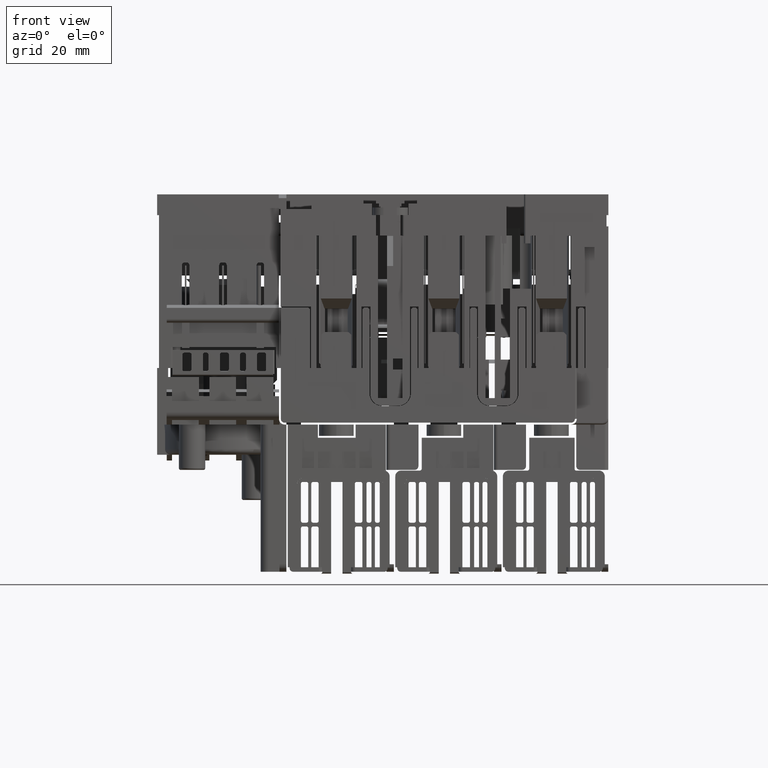
[diagram: clean part render]
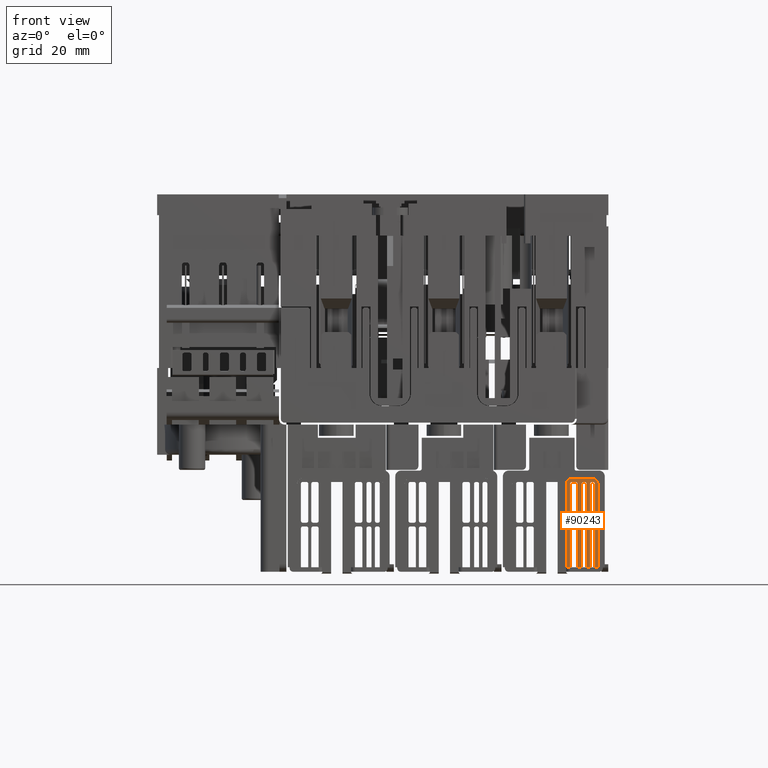
[diagram: same view with one face highlighted and labeled with its STEP entity id]
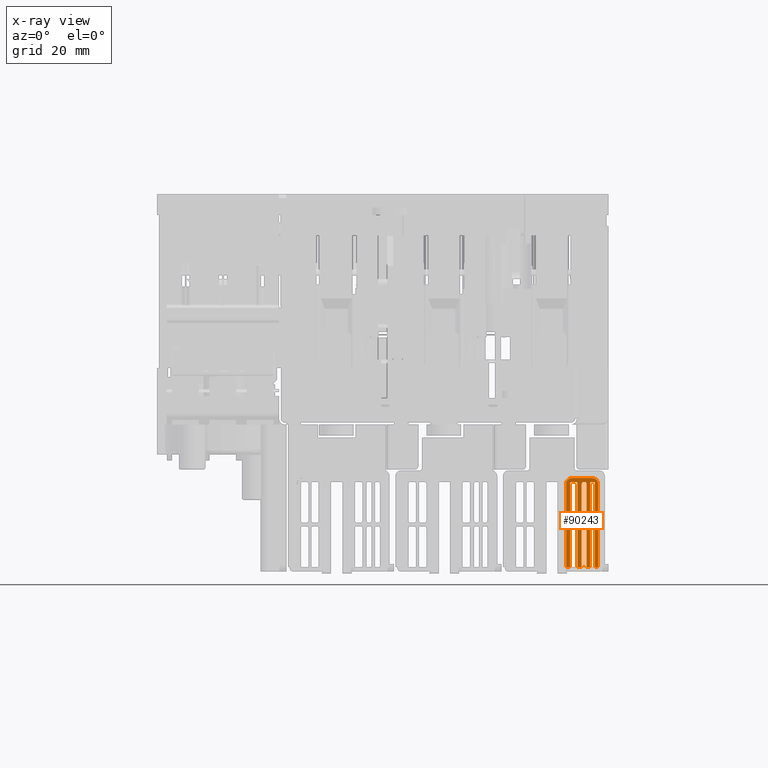
[diagram: x-ray of the same camera — body ghosted, the highlighted face saturated]
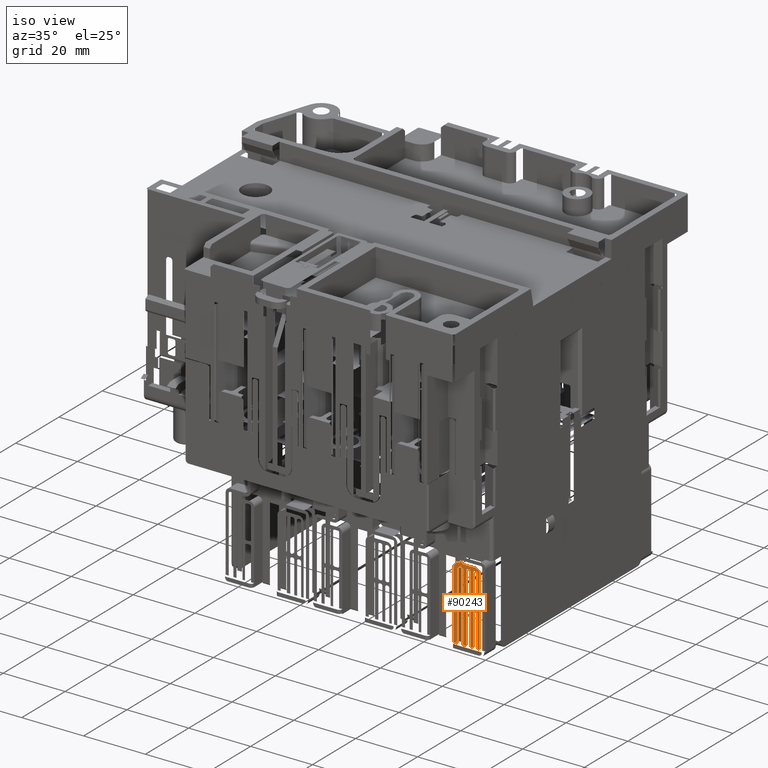
[diagram: same view with one face highlighted and labeled with its STEP entity id]
A machine part, front view. The second image highlights one B-rep face of the part: STEP entity #90243.
The next image is the same camera in x-ray: the body ghosted, the highlighted face saturated — about 0% of this face is hidden behind the body in this view.
A second angle (iso view) of the same face is appended — the face is thin or edge-on in the first view.
In plain terms, the highlighted planar face has unit normal (0, 1, 0).
Its self-contained STEP definition (entity closure, byte-faithful):
#87495=DIRECTION('',(-1.E0,0.E0,0.E0));
#87496=VECTOR('',#87495,3.000000029E-1);
#87497=CARTESIAN_POINT('',(1.994470477670E2,3.762766985529E2,
-1.025039558470E2));
#87498=LINE('',#87497,#87496);
#87499=CARTESIAN_POINT('',(1.991470477641E2,3.762766985529E2,
-1.025039558470E2));
#87500=CARTESIAN_POINT('',(1.990746303496E2,3.762766985529E2,
-1.025065243936E2));
#87501=CARTESIAN_POINT('',(1.989436843069E2,3.762766985529E2,
-1.025326833111E2));
#87502=CARTESIAN_POINT('',(1.987855628184E2,3.762766985529E2,
-1.026422287583E2));
#87503=CARTESIAN_POINT('',(1.986758452552E2,3.762766985529E2,
-1.028003564830E2));
#87504=CARTESIAN_POINT('',(1.986496387939E2,3.762766985529E2,
-1.029314385405E2));
#87505=CARTESIAN_POINT('',(1.986470477670E2,3.762766985529E2,
-1.030039558470E2));
#87507=DIRECTION('',(0.E0,0.E0,-1.E0));
#87508=VECTOR('',#87507,1.03E1);
#87509=CARTESIAN_POINT('',(1.986470477670E2,3.762766985529E2,
-1.030039558470E2));
#87510=LINE('',#87509,#87508);
#87511=DIRECTION('',(-1.E0,0.E0,0.E0));
#87512=VECTOR('',#87511,9.14353189E-1);
#87513=CARTESIAN_POINT('',(1.986470477670E2,3.762766985529E2,
-1.133039558470E2));
#87514=LINE('',#87513,#87512);
#87515=DIRECTION('',(0.E0,0.E0,1.E0));
#87516=VECTOR('',#87515,1.03E1);
#87517=CARTESIAN_POINT('',(1.977326945780E2,3.762766985529E2,
-1.133039558470E2));
#87518=LINE('',#87517,#87516);
#87519=CARTESIAN_POINT('',(1.977326945780E2,3.762766985529E2,
-1.030039558470E2));
#87520=CARTESIAN_POINT('',(1.977301260318E2,3.762766985529E2,
-1.029315384322E2));
#87521=CARTESIAN_POINT('',(1.977039671149E2,3.762766985529E2,
-1.028005923888E2));
#87522=CARTESIAN_POINT('',(1.975944216679E2,3.762766985529E2,
-1.026424708994E2));
#87523=CARTESIAN_POINT('',(1.974362939429E2,3.762766985529E2,
-1.025327533354E2));
#87524=CARTESIAN_POINT('',(1.973052118849E2,3.762766985529E2,
-1.025065468739E2));
#87525=CARTESIAN_POINT('',(1.972326945780E2,3.762766985529E2,
-1.025039558470E2));
#87527=DIRECTION('',(-1.E0,0.E0,0.E0));
#87528=VECTOR('',#87527,3.E-1);
#87529=CARTESIAN_POINT('',(1.972326945780E2,3.762766985529E2,
-1.025039558470E2));
#87530=LINE('',#87529,#87528);
#87531=CARTESIAN_POINT('',(1.969326945780E2,3.762766985529E2,
-1.025039558470E2));
#87532=CARTESIAN_POINT('',(1.968602771632E2,3.762766985529E2,
-1.025065243932E2));
#87533=CARTESIAN_POINT('',(1.967293311198E2,3.762766985529E2,
-1.025326833101E2));
#87534=CARTESIAN_POINT('',(1.965712096304E2,3.762766985529E2,
-1.026422287571E2));
#87535=CARTESIAN_POINT('',(1.964614920664E2,3.762766985529E2,
-1.028003564821E2));
#87536=CARTESIAN_POINT('',(1.964352856049E2,3.762766985529E2,
-1.029314385401E2));
#87537=CARTESIAN_POINT('',(1.964326945780E2,3.762766985529E2,
-1.030039558470E2));
#87539=DIRECTION('',(0.E0,0.E0,-1.E0));
#87540=VECTOR('',#87539,1.03E1);
#87541=CARTESIAN_POINT('',(1.964326945780E2,3.762766985529E2,
-1.030039558470E2));
#87542=LINE('',#87541,#87540);
#87543=DIRECTION('',(-1.E0,0.E0,0.E0));
#87544=VECTOR('',#87543,1.100000000100E0);
#87545=CARTESIAN_POINT('',(1.964326945780E2,3.762766985529E2,
-1.133039558470E2));
#87546=LINE('',#87545,#87544);
#87547=DIRECTION('',(0.E0,0.E0,1.E0));
#87548=VECTOR('',#87547,1.030000000010E1);
#87549=CARTESIAN_POINT('',(1.953326945779E2,3.762766985529E2,
-1.133039558470E2));
#87550=LINE('',#87549,#87548);
#87551=CARTESIAN_POINT('',(1.953326945779E2,3.762766985529E2,
-1.030039558469E2));
#87552=CARTESIAN_POINT('',(1.953301260317E2,3.762766985529E2,
-1.029315384322E2));
#87553=CARTESIAN_POINT('',(1.953039671148E2,3.762766985529E2,
-1.028005923889E2));
#87554=CARTESIAN_POINT('',(1.951944216678E2,3.762766985529E2,
-1.026424708994E2));
#87555=CARTESIAN_POINT('',(1.950362939428E2,3.762766985529E2,
-1.025327533354E2));
#87556=CARTESIAN_POINT('',(1.949052118848E2,3.762766985529E2,
-1.025065468739E2));
#87557=CARTESIAN_POINT('',(1.948326945779E2,3.762766985529E2,
-1.025039558470E2));
#87559=DIRECTION('',(-1.E0,0.E0,-1.421085471378E-14));
#87560=VECTOR('',#87559,1.000000000100E0);
#87561=CARTESIAN_POINT('',(1.948326945779E2,3.762766985529E2,
-1.025039558470E2));
#87562=LINE('',#87561,#87560);
#87563=CARTESIAN_POINT('',(1.938326945778E2,3.762766985529E2,
-1.025039558470E2));
#87564=CARTESIAN_POINT('',(1.937602771631E2,3.762766985529E2,
-1.025065243932E2));
#87565=CARTESIAN_POINT('',(1.936293311198E2,3.762766985529E2,
-1.025326833101E2));
#87566=CARTESIAN_POINT('',(1.934712096303E2,3.762766985529E2,
-1.026422287571E2));
#87567=CARTESIAN_POINT('',(1.933614920663E2,3.762766985529E2,
-1.028003564822E2));
#87568=CARTESIAN_POINT('',(1.933352856048E2,3.762766985529E2,
-1.029314385401E2));
#87569=CARTESIAN_POINT('',(1.933326945779E2,3.762766985529E2,
-1.030039558469E2));
#87571=DIRECTION('',(0.E0,0.E0,-1.E0));
#87572=VECTOR('',#87571,1.030000000010E1);
#87573=CARTESIAN_POINT('',(1.933326945779E2,3.762766985529E2,
-1.030039558469E2));
#87574=LINE('',#87573,#87572);
#87575=DIRECTION('',(-1.E0,0.E0,-1.421085739963E-14));
#87576=VECTOR('',#87575,9.999998111001E-1);
#87577=CARTESIAN_POINT('',(1.933326945779E2,3.762766985529E2,
-1.133039558470E2));
#87578=LINE('',#87577,#87576);
#87579=CARTESIAN_POINT('',(1.938326947668E2,3.762766985529E2,
-9.120395584696E1));
#87580=DIRECTION('',(0.E0,1.E0,0.E0));
#87581=DIRECTION('',(-1.E0,0.E0,0.E0));
#87582=AXIS2_PLACEMENT_3D('',#87579,#87580,#87581);
#87584=DIRECTION('',(1.E0,0.E0,-1.753275224166E-12));
#87585=VECTOR('',#87584,5.414352988575E0);
#87586=CARTESIAN_POINT('',(1.938326947638E2,3.762766985529E2,
-8.970395584696E1));
#87587=LINE('',#87586,#87585);
#87588=CARTESIAN_POINT('',(1.992470477524E2,3.762766985529E2,
-8.970395584697E1));
#87589=CARTESIAN_POINT('',(1.994145068947E2,3.762766985529E2,
-8.970666315861E1));
#87590=CARTESIAN_POINT('',(1.997281088916E2,3.762766985529E2,
-8.975640116420E1));
#87591=CARTESIAN_POINT('',(2.001477005599E2,3.762766985529E2,
-8.997480201463E1));
#87592=CARTESIAN_POINT('',(2.004770682912E2,3.762766985529E2,
-9.030452562181E1));
#87593=CARTESIAN_POINT('',(2.006948295157E2,3.762766985529E2,
-9.072387805428E1));
#87594=CARTESIAN_POINT('',(2.007443980982E2,3.762766985529E2,
-9.103689393121E1));
#87595=CARTESIAN_POINT('',(2.007470477668E2,3.762766985529E2,
-9.120395584697E1));
#87597=DIRECTION('',(0.E0,0.E0,-1.E0));
#87598=VECTOR('',#87597,2.210000000003E1);
#87599=CARTESIAN_POINT('',(2.007470477668E2,3.762766985529E2,
-9.120395584697E1));
#87600=LINE('',#87599,#87598);
#87601=DIRECTION('',(-1.E0,0.E0,0.E0));
#87602=VECTOR('',#87601,7.999999998E-1);
#87603=CARTESIAN_POINT('',(2.007470477668E2,3.762766985529E2,
-1.133039558470E2));
#87604=LINE('',#87603,#87602);
#87605=DIRECTION('',(0.E0,0.E0,1.E0));
#87606=VECTOR('',#87605,1.03E1);
#87607=CARTESIAN_POINT('',(1.999470477670E2,3.762766985529E2,
-1.133039558470E2));
#87608=LINE('',#87607,#87606);
#87609=CARTESIAN_POINT('',(1.999470477670E2,3.762766985529E2,
-1.030039558470E2));
#87610=CARTESIAN_POINT('',(1.999444792208E2,3.762766985529E2,
-1.029315384322E2));
#87611=CARTESIAN_POINT('',(1.999183203039E2,3.762766985529E2,
-1.028005923888E2));
#87612=CARTESIAN_POINT('',(1.998087748569E2,3.762766985529E2,
-1.026424708994E2));
#87613=CARTESIAN_POINT('',(1.996506471319E2,3.762766985529E2,
-1.025327533354E2));
#87614=CARTESIAN_POINT('',(1.995195650739E2,3.762766985529E2,
-1.025065468739E2));
#87615=CARTESIAN_POINT('',(1.994470477670E2,3.762766985529E2,
-1.025039558470E2));
#87617=CARTESIAN_POINT('',(1.994470477670E2,3.762766985529E2,
-1.015039558470E2));
#87618=CARTESIAN_POINT('',(1.995194651818E2,3.762766985529E2,
-1.015013873008E2));
#87619=CARTESIAN_POINT('',(1.996504112252E2,3.762766985529E2,
-1.014752283839E2));
#87620=CARTESIAN_POINT('',(1.998085327146E2,3.762766985529E2,
-1.013656829369E2));
#87621=CARTESIAN_POINT('',(1.999182502786E2,3.762766985529E2,
-1.012075552119E2));
#87622=CARTESIAN_POINT('',(1.999444567401E2,3.762766985529E2,
-1.010764731539E2));
#87623=CARTESIAN_POINT('',(1.999470477670E2,3.762766985529E2,
-1.010039558470E2));
#87625=DIRECTION('',(0.E0,0.E0,1.E0));
#87626=VECTOR('',#87625,9.800000000080E0);
#87627=CARTESIAN_POINT('',(1.999470477670E2,3.762766985529E2,
-1.010039558470E2));
#87628=LINE('',#87627,#87626);
#87629=CARTESIAN_POINT('',(1.999470477670E2,3.762766985529E2,
-9.120395584692E1));
#87630=CARTESIAN_POINT('',(1.999444792208E2,3.762766985529E2,
-9.113153843211E1));
#87631=CARTESIAN_POINT('',(1.999183203039E2,3.762766985529E2,
-9.100059238878E1));
#87632=CARTESIAN_POINT('',(1.998087748569E2,3.762766985529E2,
-9.084247089936E1));
#87633=CARTESIAN_POINT('',(1.996506471319E2,3.762766985529E2,
-9.073275333545E1));
#87634=CARTESIAN_POINT('',(1.995195650739E2,3.762766985529E2,
-9.070654687391E1));
#87635=CARTESIAN_POINT('',(1.994470477670E2,3.762766985529E2,
-9.070395584696E1));
#87637=DIRECTION('',(-1.E0,0.E0,0.E0));
#87638=VECTOR('',#87637,3.000000051E-1);
#87639=CARTESIAN_POINT('',(1.994470477670E2,3.762766985529E2,
-9.070395584696E1));
#87640=LINE('',#87639,#87638);
#87641=CARTESIAN_POINT('',(1.991470477619E2,3.762766985529E2,
-9.070395584696E1));
#87642=CARTESIAN_POINT('',(1.990746303476E2,3.762766985529E2,
-9.070652439386E1));
#87643=CARTESIAN_POINT('',(1.989436843053E2,3.762766985529E2,
-9.073268331184E1));
#87644=CARTESIAN_POINT('',(1.987855628176E2,3.762766985529E2,
-9.084222875912E1));
#87645=CARTESIAN_POINT('',(1.986758452551E2,3.762766985529E2,
-9.100035648351E1));
#87646=CARTESIAN_POINT('',(1.986496387939E2,3.762766985529E2,
-9.113143854065E1));
#87647=CARTESIAN_POINT('',(1.986470477670E2,3.762766985529E2,
-9.120395584698E1));
#87649=DIRECTION('',(0.E0,0.E0,-1.E0));
#87650=VECTOR('',#87649,9.800000000020E0);
#87651=CARTESIAN_POINT('',(1.986470477670E2,3.762766985529E2,
-9.120395584698E1));
#87652=LINE('',#87651,#87650);
#87653=CARTESIAN_POINT('',(1.986470477670E2,3.762766985529E2,
-1.010039558470E2));
#87654=CARTESIAN_POINT('',(1.986496163133E2,3.762766985529E2,
-1.010763732620E2));
#87655=CARTESIAN_POINT('',(1.986757752303E2,3.762766985529E2,
-1.012073193055E2));
#87656=CARTESIAN_POINT('',(1.987853206772E2,3.762766985529E2,
-1.013654407946E2));
#87657=CARTESIAN_POINT('',(1.989434484018E2,3.762766985529E2,
-1.014751583583E2));
#87658=CARTESIAN_POINT('',(1.990745304600E2,3.762766985529E2,
-1.015013648200E2));
#87659=CARTESIAN_POINT('',(1.991470477670E2,3.762766985529E2,
-1.015039558470E2));
#87661=DIRECTION('',(1.E0,0.E0,-9.473903143469E-14));
#87662=VECTOR('',#87661,3.E-1);
#87663=CARTESIAN_POINT('',(1.991470477670E2,3.762766985529E2,
-1.015039558470E2));
#87664=LINE('',#87663,#87662);
#87665=DIRECTION('',(0.E0,0.E0,-1.E0));
#87666=VECTOR('',#87665,9.800000000040E0);
#87667=CARTESIAN_POINT('',(1.964326945780E2,3.762766985529E2,
-9.120395584696E1));
#87668=LINE('',#87667,#87666);
#87669=CARTESIAN_POINT('',(1.964326945780E2,3.762766985529E2,
-1.010039558470E2));
#87670=CARTESIAN_POINT('',(1.964352631242E2,3.762766985529E2,
-1.010763732618E2));
#87671=CARTESIAN_POINT('',(1.964614220411E2,3.762766985529E2,
-1.012073193052E2));
#87672=CARTESIAN_POINT('',(1.965709674881E2,3.762766985529E2,
-1.013654407946E2));
#87673=CARTESIAN_POINT('',(1.967290952131E2,3.762766985529E2,
-1.014751583586E2));
#87674=CARTESIAN_POINT('',(1.968601772711E2,3.762766985529E2,
-1.015013648201E2));
#87675=CARTESIAN_POINT('',(1.969326945780E2,3.762766985529E2,
-1.015039558470E2));
#87677=DIRECTION('',(1.E0,0.E0,0.E0));
#87678=VECTOR('',#87677,3.E-1);
#87679=CARTESIAN_POINT('',(1.969326945780E2,3.762766985529E2,
-1.015039558470E2));
#87680=LINE('',#87679,#87678);
#87681=CARTESIAN_POINT('',(1.972326945780E2,3.762766985529E2,
-1.015039558470E2));
#87682=CARTESIAN_POINT('',(1.973051119930E2,3.762766985529E2,
-1.015013873007E2));
#87683=CARTESIAN_POINT('',(1.974360580366E2,3.762766985529E2,
-1.014752283836E2));
#87684=CARTESIAN_POINT('',(1.975941795258E2,3.762766985529E2,
-1.013656829367E2));
#87685=CARTESIAN_POINT('',(1.977038970895E2,3.762766985529E2,
-1.012075552120E2));
#87686=CARTESIAN_POINT('',(1.977301035510E2,3.762766985529E2,
-1.010764731539E2));
#87687=CARTESIAN_POINT('',(1.977326945780E2,3.762766985529E2,
-1.010039558470E2));
#87689=DIRECTION('',(0.E0,0.E0,1.E0));
#87690=VECTOR('',#87689,9.800000000030E0);
#87691=CARTESIAN_POINT('',(1.977326945780E2,3.762766985529E2,
-1.010039558470E2));
#87692=LINE('',#87691,#87690);
#87693=CARTESIAN_POINT('',(1.977326945780E2,3.762766985529E2,
-9.120395584697E1));
#87694=CARTESIAN_POINT('',(1.977301260318E2,3.762766985529E2,
-9.113153843213E1));
#87695=CARTESIAN_POINT('',(1.977039671149E2,3.762766985529E2,
-9.100059238877E1));
#87696=CARTESIAN_POINT('',(1.975944216679E2,3.762766985529E2,
-9.084247089937E1));
#87697=CARTESIAN_POINT('',(1.974362939429E2,3.762766985529E2,
-9.073275333545E1));
#87698=CARTESIAN_POINT('',(1.973052118849E2,3.762766985529E2,
-9.070654687391E1));
#87699=CARTESIAN_POINT('',(1.972326945780E2,3.762766985529E2,
-9.070395584696E1));
#87701=DIRECTION('',(-1.E0,0.E0,0.E0));
#87702=VECTOR('',#87701,3.E-1);
#87703=CARTESIAN_POINT('',(1.972326945780E2,3.762766985529E2,
-9.070395584696E1));
#87704=LINE('',#87703,#87702);
#87705=CARTESIAN_POINT('',(1.969326945780E2,3.762766985529E2,
-9.070395584696E1));
#87706=CARTESIAN_POINT('',(1.968602771631E2,3.762766985529E2,
-9.070652439318E1));
#87707=CARTESIAN_POINT('',(1.967293311197E2,3.762766985529E2,
-9.073268331017E1));
#87708=CARTESIAN_POINT('',(1.965712096303E2,3.762766985529E2,
-9.084222875723E1));
#87709=CARTESIAN_POINT('',(1.964614920664E2,3.762766985529E2,
-9.100035648221E1));
#87710=CARTESIAN_POINT('',(1.964352856049E2,3.762766985529E2,
-9.113143854013E1));
#87711=CARTESIAN_POINT('',(1.964326945780E2,3.762766985529E2,
-9.120395584696E1));
#87713=CARTESIAN_POINT('',(1.938326945779E2,3.762766985529E2,
-9.070395584697E1));
#87714=CARTESIAN_POINT('',(1.937602771630E2,3.762766985529E2,
-9.070652439321E1));
#87715=CARTESIAN_POINT('',(1.936293311195E2,3.762766985529E2,
-9.073268331022E1));
#87716=CARTESIAN_POINT('',(1.934712096303E2,3.762766985529E2,
-9.084222875715E1));
#87717=CARTESIAN_POINT('',(1.933614920664E2,3.762766985529E2,
-9.100035648192E1));
#87718=CARTESIAN_POINT('',(1.933352856049E2,3.762766985529E2,
-9.113143853999E1));
#87719=CARTESIAN_POINT('',(1.933326945779E2,3.762766985529E2,
-9.120395584694E1));
#87721=DIRECTION('',(0.E0,0.E0,-1.E0));
#87722=VECTOR('',#87721,9.800000000060E0);
#87723=CARTESIAN_POINT('',(1.933326945779E2,3.762766985529E2,
-9.120395584694E1));
#87724=LINE('',#87723,#87722);
#87725=CARTESIAN_POINT('',(1.933326945779E2,3.762766985529E2,
-1.010039558470E2));
#87726=CARTESIAN_POINT('',(1.933352631241E2,3.762766985529E2,
-1.010763732620E2));
#87727=CARTESIAN_POINT('',(1.933614220412E2,3.762766985529E2,
-1.012073193055E2));
#87728=CARTESIAN_POINT('',(1.934709674882E2,3.762766985529E2,
-1.013654407947E2));
#87729=CARTESIAN_POINT('',(1.936290952130E2,3.762766985529E2,
-1.014751583586E2));
#87730=CARTESIAN_POINT('',(1.937601772710E2,3.762766985529E2,
-1.015013648201E2));
#87731=CARTESIAN_POINT('',(1.938326945779E2,3.762766985529E2,
-1.015039558470E2));
#87733=DIRECTION('',(1.E0,0.E0,-2.842170942756E-14));
#87734=VECTOR('',#87733,1.000000000100E0);
#87735=CARTESIAN_POINT('',(1.938326945779E2,3.762766985529E2,
-1.015039558470E2));
#87736=LINE('',#87735,#87734);
#87737=CARTESIAN_POINT('',(1.948326945780E2,3.762766985529E2,
-1.015039558470E2));
#87738=CARTESIAN_POINT('',(1.949051119927E2,3.762766985529E2,
-1.015013873008E2));
#87739=CARTESIAN_POINT('',(1.950360580360E2,3.762766985529E2,
-1.014752283839E2));
#87740=CARTESIAN_POINT('',(1.951941795255E2,3.762766985529E2,
-1.013656829369E2));
#87741=CARTESIAN_POINT('',(1.953038970895E2,3.762766985529E2,
-1.012075552118E2));
#87742=CARTESIAN_POINT('',(1.953301035510E2,3.762766985529E2,
-1.010764731539E2));
#87743=CARTESIAN_POINT('',(1.953326945779E2,3.762766985529E2,
-1.010039558471E2));
#87745=DIRECTION('',(0.E0,0.E0,1.E0));
#87746=VECTOR('',#87745,9.800000000140E0);
#87747=CARTESIAN_POINT('',(1.953326945779E2,3.762766985529E2,
-1.010039558471E2));
#87748=LINE('',#87747,#87746);
#87749=CARTESIAN_POINT('',(1.953326945779E2,3.762766985529E2,
-9.120395584696E1));
#87750=CARTESIAN_POINT('',(1.953301260317E2,3.762766985529E2,
-9.113153843202E1));
#87751=CARTESIAN_POINT('',(1.953039671146E2,3.762766985529E2,
-9.100059238852E1));
#87752=CARTESIAN_POINT('',(1.951944216677E2,3.762766985529E2,
-9.084247089932E1));
#87753=CARTESIAN_POINT('',(1.950362939430E2,3.762766985529E2,
-9.073275333550E1));
#87754=CARTESIAN_POINT('',(1.949052118849E2,3.762766985529E2,
-9.070654687395E1));
#87755=CARTESIAN_POINT('',(1.948326945779E2,3.762766985529E2,
-9.070395584697E1));
#87757=DIRECTION('',(-1.E0,0.E0,0.E0));
#87758=VECTOR('',#87757,1.E0);
#87759=CARTESIAN_POINT('',(1.948326945779E2,3.762766985529E2,
-9.070395584697E1));
#87760=LINE('',#87759,#87758);
#87769=DIRECTION('',(0.E0,0.E0,-1.E0));
#87770=VECTOR('',#87769,2.210000000004E1);
#87771=CARTESIAN_POINT('',(1.923326947668E2,3.762766985529E2,
-9.120395584696E1));
#87772=LINE('',#87771,#87770);
#88888=CARTESIAN_POINT('',(1.938326947638E2,3.762766985529E2,
-8.970395584696E1));
#88889=VERTEX_POINT('',#88888);
#88890=CARTESIAN_POINT('',(1.994470477670E2,3.762766985529E2,
-1.025039558470E2));
#88891=CARTESIAN_POINT('',(1.991470477641E2,3.762766985529E2,
-1.025039558470E2));
#88892=VERTEX_POINT('',#88890);
#88893=VERTEX_POINT('',#88891);
#88894=VERTEX_POINT('',#87505);
#88895=CARTESIAN_POINT('',(1.986470477670E2,3.762766985529E2,
-1.133039558470E2));
#88896=VERTEX_POINT('',#88895);
#88897=CARTESIAN_POINT('',(1.977326945780E2,3.762766985529E2,
-1.133039558470E2));
#88898=VERTEX_POINT('',#88897);
#88899=CARTESIAN_POINT('',(1.977326945780E2,3.762766985529E2,
-1.030039558470E2));
#88900=VERTEX_POINT('',#88899);
#88901=VERTEX_POINT('',#87525);
#88902=CARTESIAN_POINT('',(1.969326945780E2,3.762766985529E2,
-1.025039558470E2));
#88903=VERTEX_POINT('',#88902);
#88904=VERTEX_POINT('',#87537);
#88905=CARTESIAN_POINT('',(1.964326945780E2,3.762766985529E2,
-1.133039558470E2));
#88906=VERTEX_POINT('',#88905);
#88907=CARTESIAN_POINT('',(1.953326945779E2,3.762766985529E2,
-1.133039558470E2));
#88908=VERTEX_POINT('',#88907);
#88909=CARTESIAN_POINT('',(1.953326945779E2,3.762766985529E2,
-1.030039558469E2));
#88910=VERTEX_POINT('',#88909);
#88911=VERTEX_POINT('',#87557);
#88912=CARTESIAN_POINT('',(1.938326945778E2,3.762766985529E2,
-1.025039558470E2));
#88913=VERTEX_POINT('',#88912);
#88914=VERTEX_POINT('',#87569);
#88915=CARTESIAN_POINT('',(1.933326945779E2,3.762766985529E2,
-1.133039558470E2));
#88916=VERTEX_POINT('',#88915);
#88917=CARTESIAN_POINT('',(1.923326947668E2,3.762766985529E2,
-1.133039558470E2));
#88918=VERTEX_POINT('',#88917);
#88919=CARTESIAN_POINT('',(1.992470477524E2,3.762766985529E2,
-8.970395584697E1));
#88920=VERTEX_POINT('',#88919);
#88921=VERTEX_POINT('',#87595);
#88922=CARTESIAN_POINT('',(2.007470477668E2,3.762766985529E2,
-1.133039558470E2));
#88923=VERTEX_POINT('',#88922);
#88924=CARTESIAN_POINT('',(1.999470477670E2,3.762766985529E2,
-1.133039558470E2));
#88925=VERTEX_POINT('',#88924);
#88926=CARTESIAN_POINT('',(1.999470477670E2,3.762766985529E2,
-1.030039558470E2));
#88927=VERTEX_POINT('',#88926);
#88928=VERTEX_POINT('',#87617);
#88929=VERTEX_POINT('',#87623);
#88930=CARTESIAN_POINT('',(1.999470477670E2,3.762766985529E2,
-9.120395584692E1));
#88931=VERTEX_POINT('',#88930);
#88932=VERTEX_POINT('',#87635);
#88933=CARTESIAN_POINT('',(1.991470477619E2,3.762766985529E2,
-9.070395584696E1));
#88934=VERTEX_POINT('',#88933);
#88935=VERTEX_POINT('',#87647);
#88936=CARTESIAN_POINT('',(1.986470477670E2,3.762766985529E2,
-1.010039558470E2));
#88937=VERTEX_POINT('',#88936);
#88938=VERTEX_POINT('',#87659);
#88939=CARTESIAN_POINT('',(1.964326945780E2,3.762766985529E2,
-9.120395584696E1));
#88940=CARTESIAN_POINT('',(1.964326945780E2,3.762766985529E2,
-1.010039558470E2));
#88941=VERTEX_POINT('',#88939);
#88942=VERTEX_POINT('',#88940);
#88943=VERTEX_POINT('',#87675);
#88944=CARTESIAN_POINT('',(1.972326945780E2,3.762766985529E2,
-1.015039558470E2));
#88945=VERTEX_POINT('',#88944);
#88946=VERTEX_POINT('',#87687);
#88947=CARTESIAN_POINT('',(1.977326945780E2,3.762766985529E2,
-9.120395584697E1));
#88948=VERTEX_POINT('',#88947);
#88949=VERTEX_POINT('',#87699);
#88950=CARTESIAN_POINT('',(1.969326945780E2,3.762766985529E2,
-9.070395584696E1));
#88951=VERTEX_POINT('',#88950);
#88952=VERTEX_POINT('',#87713);
#88953=VERTEX_POINT('',#87719);
#88954=CARTESIAN_POINT('',(1.933326945779E2,3.762766985529E2,
-1.010039558470E2));
#88955=VERTEX_POINT('',#88954);
#88956=VERTEX_POINT('',#87731);
#88957=CARTESIAN_POINT('',(1.948326945780E2,3.762766985529E2,
-1.015039558470E2));
#88958=VERTEX_POINT('',#88957);
#88959=VERTEX_POINT('',#87743);
#88960=CARTESIAN_POINT('',(1.953326945779E2,3.762766985529E2,
-9.120395584696E1));
#88961=VERTEX_POINT('',#88960);
#88962=VERTEX_POINT('',#87755);
#89146=CARTESIAN_POINT('',(1.923326947668E2,3.762766985529E2,
-9.120395584696E1));
#89147=VERTEX_POINT('',#89146);
#90135=CARTESIAN_POINT('',(1.965398712668E2,3.762766985529E2,
-1.015039558470E2));
#90136=DIRECTION('',(0.E0,1.E0,0.E0));
#90137=DIRECTION('',(-1.E0,0.E0,0.E0));
#90138=AXIS2_PLACEMENT_3D('',#90135,#90136,#90137);
#90139=PLANE('',#90138);
#90141=ORIENTED_EDGE('',*,*,#90140,.T.);
#90143=ORIENTED_EDGE('',*,*,#90142,.T.);
#90145=ORIENTED_EDGE('',*,*,#90144,.T.);
#90147=ORIENTED_EDGE('',*,*,#90146,.T.);
#90149=ORIENTED_EDGE('',*,*,#90148,.T.);
#90151=ORIENTED_EDGE('',*,*,#90150,.T.);
#90153=ORIENTED_EDGE('',*,*,#90152,.T.);
#90155=ORIENTED_EDGE('',*,*,#90154,.T.);
#90157=ORIENTED_EDGE('',*,*,#90156,.T.);
#90159=ORIENTED_EDGE('',*,*,#90158,.T.);
#90161=ORIENTED_EDGE('',*,*,#90160,.T.);
#90163=ORIENTED_EDGE('',*,*,#90162,.T.);
#90165=ORIENTED_EDGE('',*,*,#90164,.T.);
#90167=ORIENTED_EDGE('',*,*,#90166,.T.);
#90169=ORIENTED_EDGE('',*,*,#90168,.T.);
#90171=ORIENTED_EDGE('',*,*,#90170,.T.);
#90173=ORIENTED_EDGE('',*,*,#90172,.F.);
#90174=ORIENTED_EDGE('',*,*,#90128,.T.);
#90176=ORIENTED_EDGE('',*,*,#90175,.T.);
#90178=ORIENTED_EDGE('',*,*,#90177,.T.);
#90180=ORIENTED_EDGE('',*,*,#90179,.T.);
#90182=ORIENTED_EDGE('',*,*,#90181,.T.);
#90184=ORIENTED_EDGE('',*,*,#90183,.T.);
#90186=ORIENTED_EDGE('',*,*,#90185,.T.);
#90187=EDGE_LOOP('',(#90141,#90143,#90145,#90147,#90149,#90151,#90153,#90155,
#90157,#90159,#90161,#90163,#90165,#90167,#90169,#90171,#90173,#90174,#90176,
#90178,#90180,#90182,#90184,#90186));
#90188=FACE_OUTER_BOUND('',#90187,.F.);
#90190=ORIENTED_EDGE('',*,*,#90189,.T.);
#90192=ORIENTED_EDGE('',*,*,#90191,.T.);
#90194=ORIENTED_EDGE('',*,*,#90193,.T.);
#90196=ORIENTED_EDGE('',*,*,#90195,.T.);
#90198=ORIENTED_EDGE('',*,*,#90197,.T.);
#90200=ORIENTED_EDGE('',*,*,#90199,.T.);
#90202=ORIENTED_EDGE('',*,*,#90201,.T.);
#90204=ORIENTED_EDGE('',*,*,#90203,.T.);
#90205=EDGE_LOOP('',(#90190,#90192,#90194,#90196,#90198,#90200,#90202,#90204));
#90206=FACE_BOUND('',#90205,.F.);
#90208=ORIENTED_EDGE('',*,*,#90207,.T.);
#90210=ORIENTED_EDGE('',*,*,#90209,.T.);
#90212=ORIENTED_EDGE('',*,*,#90211,.T.);
#90214=ORIENTED_EDGE('',*,*,#90213,.T.);
#90216=ORIENTED_EDGE('',*,*,#90215,.T.);
#90218=ORIENTED_EDGE('',*,*,#90217,.T.);
#90220=ORIENTED_EDGE('',*,*,#90219,.T.);
#90222=ORIENTED_EDGE('',*,*,#90221,.T.);
#90223=EDGE_LOOP('',(#90208,#90210,#90212,#90214,#90216,#90218,#90220,#90222));
#90224=FACE_BOUND('',#90223,.F.);
#90226=ORIENTED_EDGE('',*,*,#90225,.T.);
#90228=ORIENTED_EDGE('',*,*,#90227,.T.);
#90230=ORIENTED_EDGE('',*,*,#90229,.T.);
#90232=ORIENTED_EDGE('',*,*,#90231,.T.);
#90234=ORIENTED_EDGE('',*,*,#90233,.T.);
#90236=ORIENTED_EDGE('',*,*,#90235,.T.);
#90238=ORIENTED_EDGE('',*,*,#90237,.T.);
#90240=ORIENTED_EDGE('',*,*,#90239,.T.);
#90241=EDGE_LOOP('',(#90226,#90228,#90230,#90232,#90234,#90236,#90238,#90240));
#90242=FACE_BOUND('',#90241,.F.);
#90243=ADVANCED_FACE('',(#90188,#90206,#90224,#90242),#90139,.F.);
#87506=B_SPLINE_CURVE_WITH_KNOTS('',3,(#87499,#87500,#87501,#87502,#87503,
#87504,#87505),.UNSPECIFIED.,.F.,.F.,(4,1,1,1,4),(0.E0,2.5E-1,5.E-1,7.5E-1,
1.E0),.UNSPECIFIED.);
#87526=B_SPLINE_CURVE_WITH_KNOTS('',3,(#87519,#87520,#87521,#87522,#87523,
#87524,#87525),.UNSPECIFIED.,.F.,.F.,(4,1,1,1,4),(0.E0,2.5E-1,5.E-1,7.5E-1,
1.E0),.UNSPECIFIED.);
#87538=B_SPLINE_CURVE_WITH_KNOTS('',3,(#87531,#87532,#87533,#87534,#87535,
#87536,#87537),.UNSPECIFIED.,.F.,.F.,(4,1,1,1,4),(0.E0,2.5E-1,5.E-1,7.5E-1,
1.E0),.UNSPECIFIED.);
#87558=B_SPLINE_CURVE_WITH_KNOTS('',3,(#87551,#87552,#87553,#87554,#87555,
#87556,#87557),.UNSPECIFIED.,.F.,.F.,(4,1,1,1,4),(0.E0,2.5E-1,5.E-1,7.5E-1,
1.E0),.UNSPECIFIED.);
#87570=B_SPLINE_CURVE_WITH_KNOTS('',3,(#87563,#87564,#87565,#87566,#87567,
#87568,#87569),.UNSPECIFIED.,.F.,.F.,(4,1,1,1,4),(0.E0,2.5E-1,5.E-1,7.5E-1,
1.E0),.UNSPECIFIED.);
#87583=CIRCLE('',#87582,1.5E0);
#87596=B_SPLINE_CURVE_WITH_KNOTS('',3,(#87588,#87589,#87590,#87591,#87592,
#87593,#87594,#87595),.UNSPECIFIED.,.F.,.F.,(4,1,1,1,1,4),(0.E0,2.E-1,4.E-1,
6.E-1,8.E-1,1.E0),.UNSPECIFIED.);
#87616=B_SPLINE_CURVE_WITH_KNOTS('',3,(#87609,#87610,#87611,#87612,#87613,
#87614,#87615),.UNSPECIFIED.,.F.,.F.,(4,1,1,1,4),(0.E0,2.5E-1,5.E-1,7.5E-1,
1.E0),.UNSPECIFIED.);
#87624=B_SPLINE_CURVE_WITH_KNOTS('',3,(#87617,#87618,#87619,#87620,#87621,
#87622,#87623),.UNSPECIFIED.,.F.,.F.,(4,1,1,1,4),(0.E0,2.5E-1,5.E-1,7.5E-1,
1.E0),.UNSPECIFIED.);
#87636=B_SPLINE_CURVE_WITH_KNOTS('',3,(#87629,#87630,#87631,#87632,#87633,
#87634,#87635),.UNSPECIFIED.,.F.,.F.,(4,1,1,1,4),(0.E0,2.5E-1,5.E-1,7.5E-1,
1.E0),.UNSPECIFIED.);
#87648=B_SPLINE_CURVE_WITH_KNOTS('',3,(#87641,#87642,#87643,#87644,#87645,
#87646,#87647),.UNSPECIFIED.,.F.,.F.,(4,1,1,1,4),(0.E0,2.5E-1,5.E-1,7.5E-1,
1.E0),.UNSPECIFIED.);
#87660=B_SPLINE_CURVE_WITH_KNOTS('',3,(#87653,#87654,#87655,#87656,#87657,
#87658,#87659),.UNSPECIFIED.,.F.,.F.,(4,1,1,1,4),(0.E0,2.5E-1,5.E-1,7.5E-1,
1.E0),.UNSPECIFIED.);
#87676=B_SPLINE_CURVE_WITH_KNOTS('',3,(#87669,#87670,#87671,#87672,#87673,
#87674,#87675),.UNSPECIFIED.,.F.,.F.,(4,1,1,1,4),(0.E0,2.5E-1,5.E-1,7.5E-1,
1.E0),.UNSPECIFIED.);
#87688=B_SPLINE_CURVE_WITH_KNOTS('',3,(#87681,#87682,#87683,#87684,#87685,
#87686,#87687),.UNSPECIFIED.,.F.,.F.,(4,1,1,1,4),(0.E0,2.5E-1,5.E-1,7.5E-1,
1.E0),.UNSPECIFIED.);
#87700=B_SPLINE_CURVE_WITH_KNOTS('',3,(#87693,#87694,#87695,#87696,#87697,
#87698,#87699),.UNSPECIFIED.,.F.,.F.,(4,1,1,1,4),(0.E0,2.5E-1,5.E-1,7.5E-1,
1.E0),.UNSPECIFIED.);
#87712=B_SPLINE_CURVE_WITH_KNOTS('',3,(#87705,#87706,#87707,#87708,#87709,
#87710,#87711),.UNSPECIFIED.,.F.,.F.,(4,1,1,1,4),(0.E0,2.5E-1,5.E-1,7.5E-1,
1.E0),.UNSPECIFIED.);
#87720=B_SPLINE_CURVE_WITH_KNOTS('',3,(#87713,#87714,#87715,#87716,#87717,
#87718,#87719),.UNSPECIFIED.,.F.,.F.,(4,1,1,1,4),(0.E0,2.5E-1,5.E-1,7.5E-1,
1.E0),.UNSPECIFIED.);
#87732=B_SPLINE_CURVE_WITH_KNOTS('',3,(#87725,#87726,#87727,#87728,#87729,
#87730,#87731),.UNSPECIFIED.,.F.,.F.,(4,1,1,1,4),(0.E0,2.5E-1,5.E-1,7.5E-1,
1.E0),.UNSPECIFIED.);
#87744=B_SPLINE_CURVE_WITH_KNOTS('',3,(#87737,#87738,#87739,#87740,#87741,
#87742,#87743),.UNSPECIFIED.,.F.,.F.,(4,1,1,1,4),(0.E0,2.5E-1,5.E-1,7.5E-1,
1.E0),.UNSPECIFIED.);
#87756=B_SPLINE_CURVE_WITH_KNOTS('',3,(#87749,#87750,#87751,#87752,#87753,
#87754,#87755),.UNSPECIFIED.,.F.,.F.,(4,1,1,1,4),(0.E0,2.5E-1,5.E-1,7.5E-1,
1.E0),.UNSPECIFIED.);
#90128=EDGE_CURVE('',#89147,#88889,#87583,.T.);
#90140=EDGE_CURVE('',#88892,#88893,#87498,.T.);
#90142=EDGE_CURVE('',#88893,#88894,#87506,.T.);
#90144=EDGE_CURVE('',#88894,#88896,#87510,.T.);
#90146=EDGE_CURVE('',#88896,#88898,#87514,.T.);
#90148=EDGE_CURVE('',#88898,#88900,#87518,.T.);
#90150=EDGE_CURVE('',#88900,#88901,#87526,.T.);
#90152=EDGE_CURVE('',#88901,#88903,#87530,.T.);
#90154=EDGE_CURVE('',#88903,#88904,#87538,.T.);
#90156=EDGE_CURVE('',#88904,#88906,#87542,.T.);
#90158=EDGE_CURVE('',#88906,#88908,#87546,.T.);
#90160=EDGE_CURVE('',#88908,#88910,#87550,.T.);
#90162=EDGE_CURVE('',#88910,#88911,#87558,.T.);
#90164=EDGE_CURVE('',#88911,#88913,#87562,.T.);
#90166=EDGE_CURVE('',#88913,#88914,#87570,.T.);
#90168=EDGE_CURVE('',#88914,#88916,#87574,.T.);
#90170=EDGE_CURVE('',#88916,#88918,#87578,.T.);
#90172=EDGE_CURVE('',#89147,#88918,#87772,.T.);
#90175=EDGE_CURVE('',#88889,#88920,#87587,.T.);
#90177=EDGE_CURVE('',#88920,#88921,#87596,.T.);
#90179=EDGE_CURVE('',#88921,#88923,#87600,.T.);
#90181=EDGE_CURVE('',#88923,#88925,#87604,.T.);
#90183=EDGE_CURVE('',#88925,#88927,#87608,.T.);
#90185=EDGE_CURVE('',#88927,#88892,#87616,.T.);
#90189=EDGE_CURVE('',#88928,#88929,#87624,.T.);
#90191=EDGE_CURVE('',#88929,#88931,#87628,.T.);
#90193=EDGE_CURVE('',#88931,#88932,#87636,.T.);
#90195=EDGE_CURVE('',#88932,#88934,#87640,.T.);
#90197=EDGE_CURVE('',#88934,#88935,#87648,.T.);
#90199=EDGE_CURVE('',#88935,#88937,#87652,.T.);
#90201=EDGE_CURVE('',#88937,#88938,#87660,.T.);
#90203=EDGE_CURVE('',#88938,#88928,#87664,.T.);
#90207=EDGE_CURVE('',#88941,#88942,#87668,.T.);
#90209=EDGE_CURVE('',#88942,#88943,#87676,.T.);
#90211=EDGE_CURVE('',#88943,#88945,#87680,.T.);
#90213=EDGE_CURVE('',#88945,#88946,#87688,.T.);
#90215=EDGE_CURVE('',#88946,#88948,#87692,.T.);
#90217=EDGE_CURVE('',#88948,#88949,#87700,.T.);
#90219=EDGE_CURVE('',#88949,#88951,#87704,.T.);
#90221=EDGE_CURVE('',#88951,#88941,#87712,.T.);
#90225=EDGE_CURVE('',#88952,#88953,#87720,.T.);
#90227=EDGE_CURVE('',#88953,#88955,#87724,.T.);
#90229=EDGE_CURVE('',#88955,#88956,#87732,.T.);
#90231=EDGE_CURVE('',#88956,#88958,#87736,.T.);
#90233=EDGE_CURVE('',#88958,#88959,#87744,.T.);
#90235=EDGE_CURVE('',#88959,#88961,#87748,.T.);
#90237=EDGE_CURVE('',#88961,#88962,#87756,.T.);
#90239=EDGE_CURVE('',#88962,#88952,#87760,.T.);